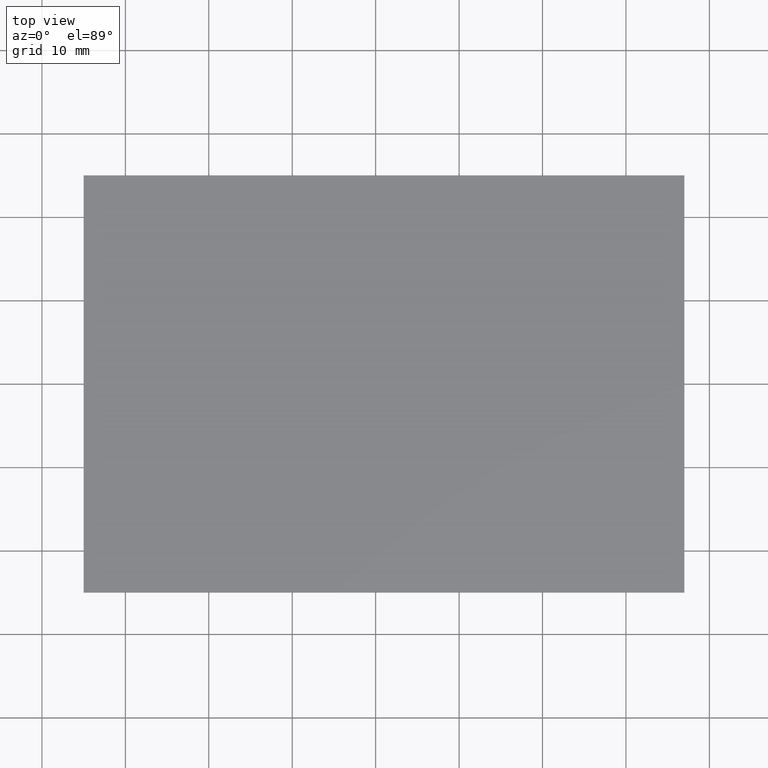
[diagram: clean part render]
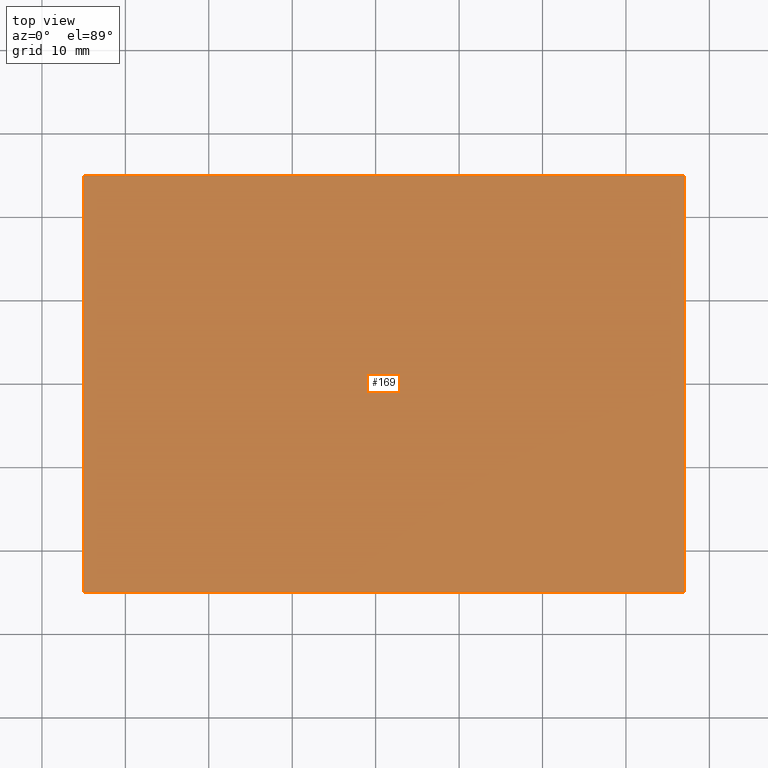
[diagram: same view with one face highlighted and labeled with its STEP entity id]
A machine part, top view. The second image highlights one B-rep face of the part: STEP entity #169.
In plain terms, the highlighted planar face has unit normal (-0, 0, 1).
Its self-contained STEP definition (entity closure, byte-faithful):
#3 = EDGE_CURVE ( 'NONE', #109, #54, #173, .T. ) ;
#7 = FACE_OUTER_BOUND ( 'NONE', #233, .T. ) ;
#9 = ORIENTED_EDGE ( 'NONE', *, *, #265, .T. ) ;
#12 = DIRECTION ( 'NONE',  ( 1.387778780781445700E-016, 1.000000000000000000, -0.0000000000000000000 ) ) ;
#23 = CARTESIAN_POINT ( 'NONE',  ( -25.00000000000000000, 25.00000000000000000, 1.100000000000000100 ) ) ;
#36 = VERTEX_POINT ( 'NONE', #56 ) ;
#38 = CARTESIAN_POINT ( 'NONE',  ( 0.0000000000000000000, 0.0000000000000000000, 1.100000000000000100 ) ) ;
#40 = VECTOR ( 'NONE', #12, 1000.000000000000000 ) ;
#49 = LINE ( 'NONE', #132, #302 ) ;
#53 = VECTOR ( 'NONE', #286, 1000.000000000000000 ) ;
#54 = VERTEX_POINT ( 'NONE', #262 ) ;
#56 = CARTESIAN_POINT ( 'NONE',  ( -24.99999999999999300, -25.00000000000000000, 1.100000000000000100 ) ) ;
#66 = DIRECTION ( 'NONE',  ( -0.0000000000000000000, 0.0000000000000000000, 1.000000000000000000 ) ) ;
#86 = EDGE_CURVE ( 'NONE', #54, #156, #49, .T. ) ;
#107 = CARTESIAN_POINT ( 'NONE',  ( -25.00000000000000000, 25.00000000000000000, 1.100000000000000100 ) ) ;
#109 = VERTEX_POINT ( 'NONE', #234 ) ;
#110 = CARTESIAN_POINT ( 'NONE',  ( -24.99999999999999300, -25.00000000000000000, 1.100000000000000100 ) ) ;
#112 = DIRECTION ( 'NONE',  ( 1.000000000000000000, 0.0000000000000000000, 0.0000000000000000000 ) ) ;
#121 = ORIENTED_EDGE ( 'NONE', *, *, #86, .T. ) ;
#132 = CARTESIAN_POINT ( 'NONE',  ( -25.00000000000000000, 25.00000000000000000, 1.100000000000000100 ) ) ;
#147 = LINE ( 'NONE', #110, #236 ) ;
#156 = VERTEX_POINT ( 'NONE', #107 ) ;
#169 = ADVANCED_FACE ( 'NONE', ( #7 ), #232, .T. ) ;
#170 = EDGE_CURVE ( 'NONE', #36, #109, #147, .T. ) ;
#173 = LINE ( 'NONE', #258, #40 ) ;
#179 = AXIS2_PLACEMENT_3D ( 'NONE', #38, #66, #314 ) ;
#210 = DIRECTION ( 'NONE',  ( -1.000000000000000000, -0.0000000000000000000, -0.0000000000000000000 ) ) ;
#232 = PLANE ( 'NONE',  #179 ) ;
#233 = EDGE_LOOP ( 'NONE', ( #9, #310, #266, #121 ) ) ;
#234 = CARTESIAN_POINT ( 'NONE',  ( 46.99999999999998600, -25.00000000000000000, 1.100000000000000100 ) ) ;
#236 = VECTOR ( 'NONE', #112, 1000.000000000000000 ) ;
#258 = CARTESIAN_POINT ( 'NONE',  ( 46.99999999999999300, 25.00000000000000000, 1.100000000000000100 ) ) ;
#262 = CARTESIAN_POINT ( 'NONE',  ( 46.99999999999999300, 25.00000000000000000, 1.100000000000000100 ) ) ;
#265 = EDGE_CURVE ( 'NONE', #156, #36, #294, .T. ) ;
#266 = ORIENTED_EDGE ( 'NONE', *, *, #3, .T. ) ;
#286 = DIRECTION ( 'NONE',  ( 1.387778780781445700E-016, -1.000000000000000000, 0.0000000000000000000 ) ) ;
#294 = LINE ( 'NONE', #23, #53 ) ;
#302 = VECTOR ( 'NONE', #210, 1000.000000000000000 ) ;
#310 = ORIENTED_EDGE ( 'NONE', *, *, #170, .T. ) ;
#314 = DIRECTION ( 'NONE',  ( 1.000000000000000000, 0.0000000000000000000, 0.0000000000000000000 ) ) ;